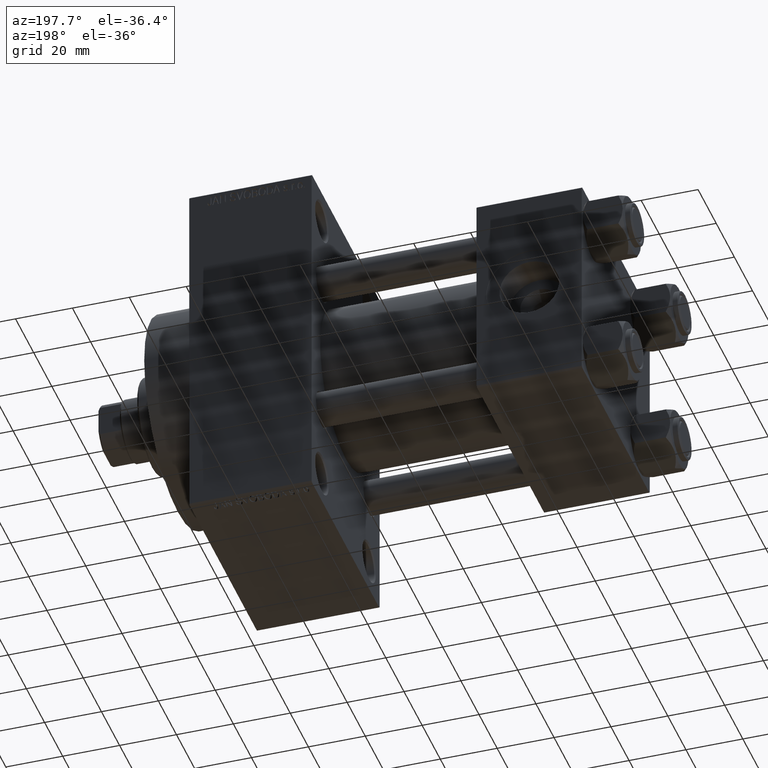
[diagram: clean part render]
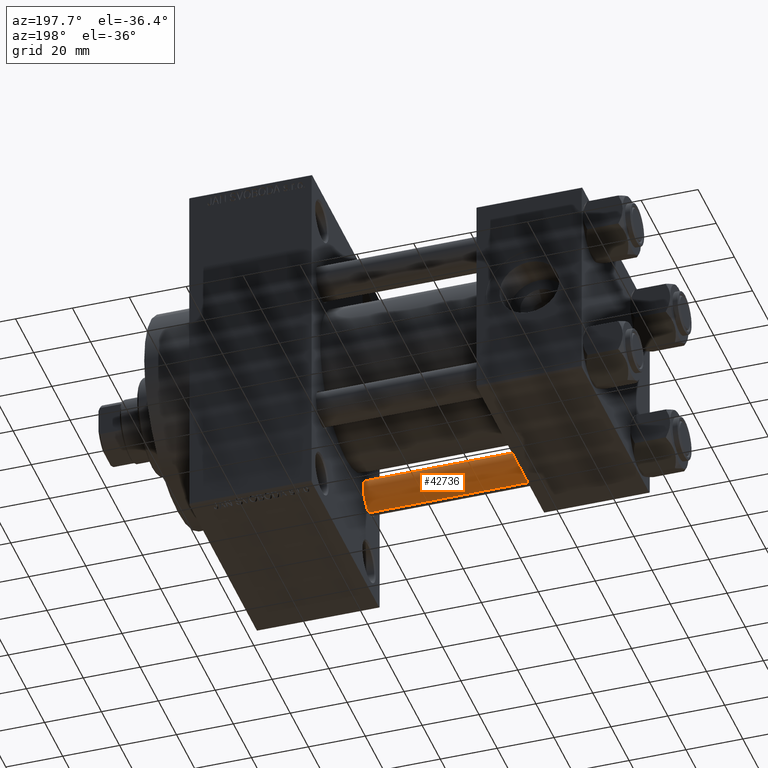
[diagram: same view with one face highlighted and labeled with its STEP entity id]
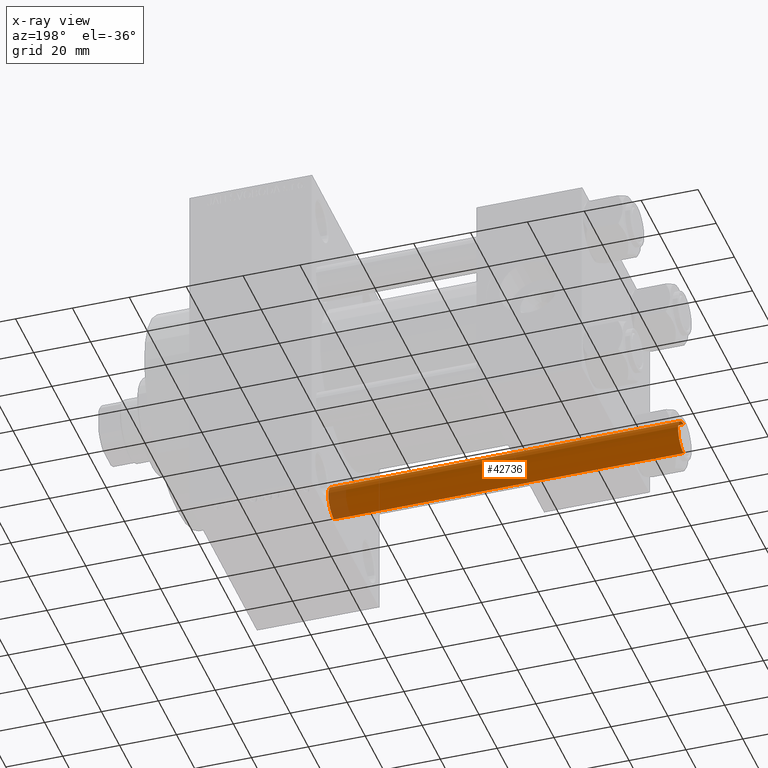
[diagram: x-ray of the same camera — body ghosted, the highlighted face saturated]
A machine part, auxiliary view. The second image highlights one B-rep face of the part: STEP entity #42736.
The next image is the same camera in x-ray: the body ghosted, the highlighted face saturated — about 5% of this face is hidden behind the body in this view.
In plain terms, the highlighted cylindrical surface (edge-blend (fillet) strip) has radius 6 mm, axis along (1, 0, 0).
Its self-contained STEP definition (entity closure, byte-faithful):
#2896 = EDGE_CURVE ( 'NONE', #31691, #16286, #3321, .T. ) ;
#3205 = EDGE_CURVE ( 'NONE', #31691, #36694, #15783, .T. ) ;
#3321 = LINE ( 'NONE', #36275, #10529 ) ;
#5388 = DIRECTION ( 'NONE',  ( 0.000000000000000000, 0.000000000000000000, -1.000000000000000000 ) ) ;
#6033 = ORIENTED_EDGE ( 'NONE', *, *, #2896, .F. ) ;
#6660 = DIRECTION ( 'NONE',  ( -0.000000000000000000, -0.000000000000000000, -1.000000000000000000 ) ) ;
#6778 = VERTEX_POINT ( 'NONE', #27483 ) ;
#7436 = DIRECTION ( 'NONE',  ( -0.000000000000000000, -0.000000000000000000, -1.000000000000000000 ) ) ;
#10529 = VECTOR ( 'NONE', #6660, 1000.000000000000000 ) ;
#11496 = DIRECTION ( 'NONE',  ( -0.000000000000000000, -0.000000000000000000, -1.000000000000000000 ) ) ;
#11947 = CARTESIAN_POINT ( 'NONE',  ( -6.000000000000000888, 0.000000000000000000, 124.0000000000000000 ) ) ;
#12055 = AXIS2_PLACEMENT_3D ( 'NONE', #25602, #11496, #22018 ) ;
#12062 = CARTESIAN_POINT ( 'NONE',  ( 0.000000000000000000, 0.000000000000000000, 123.5000000000000426 ) ) ;
#13490 = EDGE_CURVE ( 'NONE', #6778, #16286, #26036, .T. ) ;
#13955 = CARTESIAN_POINT ( 'NONE',  ( 6.000000000000000888, 7.347880794884120722E-16, 123.5000000000000426 ) ) ;
#14763 = VECTOR ( 'NONE', #7436, 1000.000000000000000 ) ;
#15783 = CIRCLE ( 'NONE', #18069, 6.000000000000000888 ) ;
#16286 = VERTEX_POINT ( 'NONE', #24691 ) ;
#16346 = DIRECTION ( 'NONE',  ( -0.000000000000000000, -0.000000000000000000, 1.000000000000000000 ) ) ;
#18069 = AXIS2_PLACEMENT_3D ( 'NONE', #12062, #5388, #23758 ) ;
#21554 = FACE_OUTER_BOUND ( 'NONE', #32950, .T. ) ;
#22018 = DIRECTION ( 'NONE',  ( -1.000000000000000000, 0.000000000000000000, 0.000000000000000000 ) ) ;
#23758 = DIRECTION ( 'NONE',  ( 1.000000000000000000, 0.000000000000000000, 0.000000000000000000 ) ) ;
#24691 = CARTESIAN_POINT ( 'NONE',  ( 6.000000000000000888, 7.347880794884120722E-16, 0.4999999999999865663 ) ) ;
#25602 = CARTESIAN_POINT ( 'NONE',  ( 0.000000000000000000, 0.000000000000000000, 124.0000000000000000 ) ) ;
#26036 = CIRCLE ( 'NONE', #28328, 6.000000000000000888 ) ;
#27483 = CARTESIAN_POINT ( 'NONE',  ( -6.000000000000000888, 0.000000000000000000, 0.4999999999999865663 ) ) ;
#28328 = AXIS2_PLACEMENT_3D ( 'NONE', #42379, #16346, #41668 ) ;
#28394 = ORIENTED_EDGE ( 'NONE', *, *, #28778, .T. ) ;
#28778 = EDGE_CURVE ( 'NONE', #36694, #6778, #40402, .T. ) ;
#29015 = ORIENTED_EDGE ( 'NONE', *, *, #13490, .T. ) ;
#29648 = CYLINDRICAL_SURFACE ( 'NONE', #12055, 6.000000000000000888 ) ;
#31691 = VERTEX_POINT ( 'NONE', #13955 ) ;
#32950 = EDGE_LOOP ( 'NONE', ( #6033, #39118, #28394, #29015 ) ) ;
#36275 = CARTESIAN_POINT ( 'NONE',  ( 6.000000000000000888, 7.347880794884120722E-16, 124.0000000000000000 ) ) ;
#36351 = CARTESIAN_POINT ( 'NONE',  ( -6.000000000000000888, 0.000000000000000000, 123.5000000000000426 ) ) ;
#36694 = VERTEX_POINT ( 'NONE', #36351 ) ;
#39118 = ORIENTED_EDGE ( 'NONE', *, *, #3205, .T. ) ;
#40402 = LINE ( 'NONE', #11947, #14763 ) ;
#41668 = DIRECTION ( 'NONE',  ( 1.000000000000000000, 0.000000000000000000, 0.000000000000000000 ) ) ;
#42379 = CARTESIAN_POINT ( 'NONE',  ( 0.000000000000000000, 0.000000000000000000, 0.4999999999999865663 ) ) ;
#42736 = ADVANCED_FACE ( 'NONE', ( #21554 ), #29648, .T. ) ;